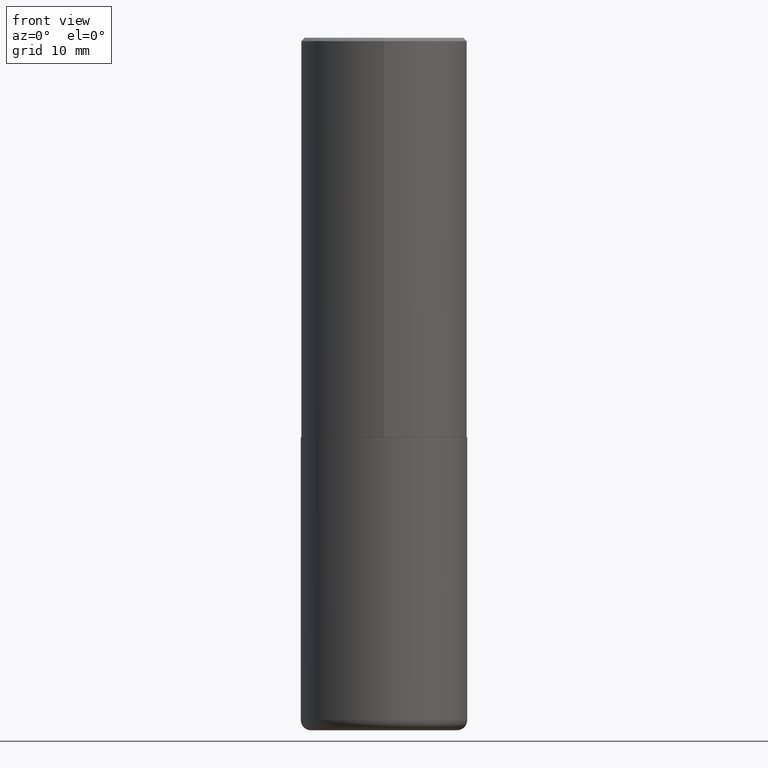
[diagram: clean part render]
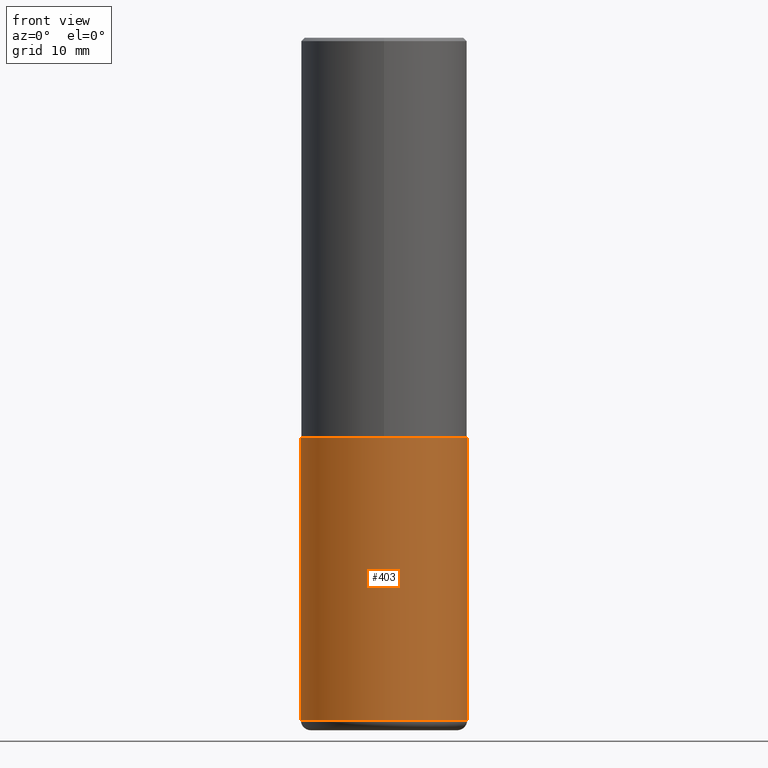
[diagram: same view with one face highlighted and labeled with its STEP entity id]
A machine part, front view. The second image highlights one B-rep face of the part: STEP entity #403.
In plain terms, the highlighted cylindrical surface (partial cylindrical patch) has radius 12.5006 mm, axis along (-0, 0, 1).
Its self-contained STEP definition (entity closure, byte-faithful):
#17 = EDGE_CURVE ( 'NONE', #175, #288, #284, .T. ) ;
#19 = CARTESIAN_POINT ( 'NONE',  ( 0.4921499999999999764, -3.436665081823295777E-15, 2.399810400207969603E-29 ) ) ;
#23 = VECTOR ( 'NONE', #39, 39.37007874015748143 ) ;
#33 = CYLINDRICAL_SURFACE ( 'NONE', #212, 0.4921499999999999764 ) ;
#37 = DIRECTION ( 'NONE',  ( 1.000000000000000000, -6.982962677686265922E-15, 0.000000000000000000 ) ) ;
#39 = DIRECTION ( 'NONE',  ( -2.445468806185136877E-29, 3.491481338843145188E-15, 1.000000000000000000 ) ) ;
#49 = CARTESIAN_POINT ( 'NONE',  ( -0.4921500000000000319, -1.059014368378710651E-14, -4.034700000000000841 ) ) ;
#52 = LINE ( 'NONE', #19, #249 ) ;
#71 = DIRECTION ( 'NONE',  ( 1.000000000000000000, -6.982962677686265922E-15, 4.876176775795935793E-29 ) ) ;
#90 = AXIS2_PLACEMENT_3D ( 'NONE', #167, #262, #37 ) ;
#98 = AXIS2_PLACEMENT_3D ( 'NONE', #206, #323, #173 ) ;
#107 = CARTESIAN_POINT ( 'NONE',  ( -0.4921499999999999764, 3.496936074043332897E-15, -2.420853904668951509E-29 ) ) ;
#112 = EDGE_LOOP ( 'NONE', ( #119, #207, #397, #121 ) ) ;
#119 = ORIENTED_EDGE ( 'NONE', *, *, #412, .F. ) ;
#121 = ORIENTED_EDGE ( 'NONE', *, *, #131, .F. ) ;
#131 = EDGE_CURVE ( 'NONE', #411, #418, #291, .T. ) ;
#140 = DIRECTION ( 'NONE',  ( -2.445468806185136597E-29, 3.491481338843145583E-15, 1.000000000000000000 ) ) ;
#160 = CARTESIAN_POINT ( 'NONE',  ( 0.4921500000000000319, -1.752374483965373598E-14, -4.034700000000000841 ) ) ;
#167 = CARTESIAN_POINT ( 'NONE',  ( 9.866732992315171563E-29, -1.408707975783044020E-14, -4.034700000000000841 ) ) ;
#173 = DIRECTION ( 'NONE',  ( 1.000000000000000000, -6.982962677686263555E-15, 0.000000000000000000 ) ) ;
#174 = CARTESIAN_POINT ( 'NONE',  ( 0.000000000000000000, 0.000000000000000000, 0.000000000000000000 ) ) ;
#175 = VERTEX_POINT ( 'NONE', #49 ) ;
#197 = LINE ( 'NONE', #107, #23 ) ;
#206 = CARTESIAN_POINT ( 'NONE',  ( 5.776686413970530874E-29, -8.247577218615279626E-15, -2.362200000000000077 ) ) ;
#207 = ORIENTED_EDGE ( 'NONE', *, *, #17, .T. ) ;
#212 = AXIS2_PLACEMENT_3D ( 'NONE', #174, #140, #71 ) ;
#249 = VECTOR ( 'NONE', #391, 39.37007874015748143 ) ;
#259 = FACE_OUTER_BOUND ( 'NONE', #112, .T. ) ;
#262 = DIRECTION ( 'NONE',  ( -2.445468806185136597E-29, 3.491481338843145583E-15, 1.000000000000000000 ) ) ;
#284 = CIRCLE ( 'NONE', #90, 0.4921499999999999764 ) ;
#288 = VERTEX_POINT ( 'NONE', #160 ) ;
#291 = CIRCLE ( 'NONE', #98, 0.4921499999999999764 ) ;
#323 = DIRECTION ( 'NONE',  ( -2.445468806185136597E-29, 3.491481338843145583E-15, 1.000000000000000000 ) ) ;
#354 = CARTESIAN_POINT ( 'NONE',  ( 0.4921499999999999764, -1.168424230043857383E-14, -2.362200000000000077 ) ) ;
#357 = EDGE_CURVE ( 'NONE', #288, #418, #52, .T. ) ;
#391 = DIRECTION ( 'NONE',  ( -2.445468806185136877E-29, 3.491481338843145188E-15, 1.000000000000000000 ) ) ;
#397 = ORIENTED_EDGE ( 'NONE', *, *, #357, .T. ) ;
#403 = ADVANCED_FACE ( 'NONE', ( #259 ), #33, .T. ) ;
#411 = VERTEX_POINT ( 'NONE', #413 ) ;
#412 = EDGE_CURVE ( 'NONE', #175, #411, #197, .T. ) ;
#413 = CARTESIAN_POINT ( 'NONE',  ( -0.4921499999999999764, -7.670392414179527805E-15, -2.362200000000000077 ) ) ;
#418 = VERTEX_POINT ( 'NONE', #354 ) ;